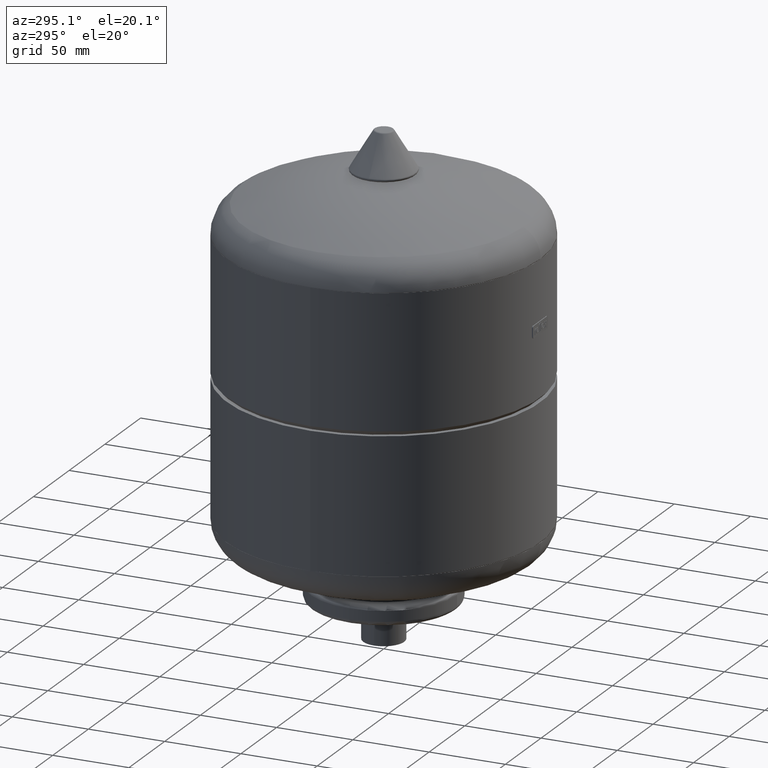
[diagram: clean part render]
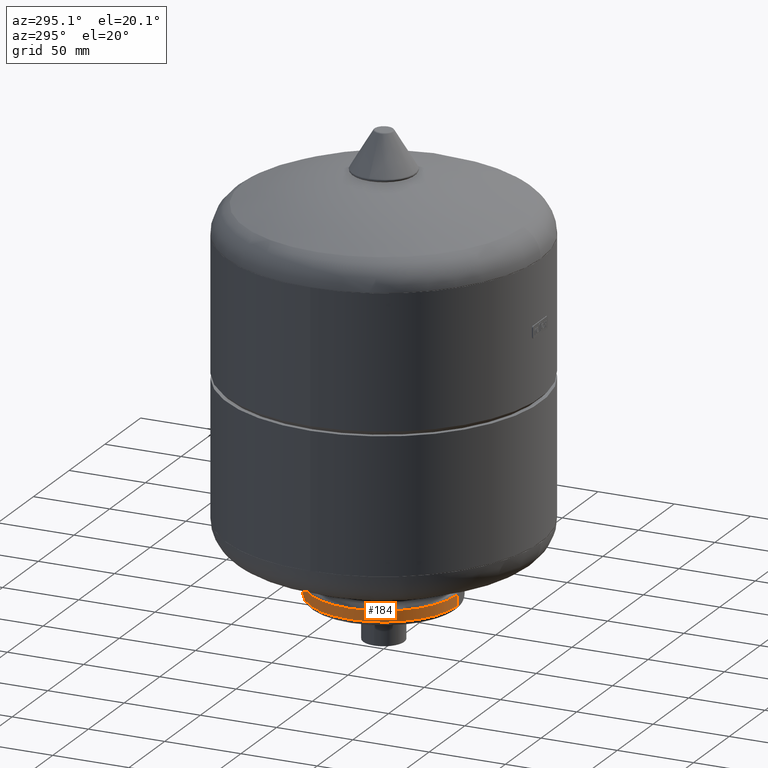
[diagram: same view with one face highlighted and labeled with its STEP entity id]
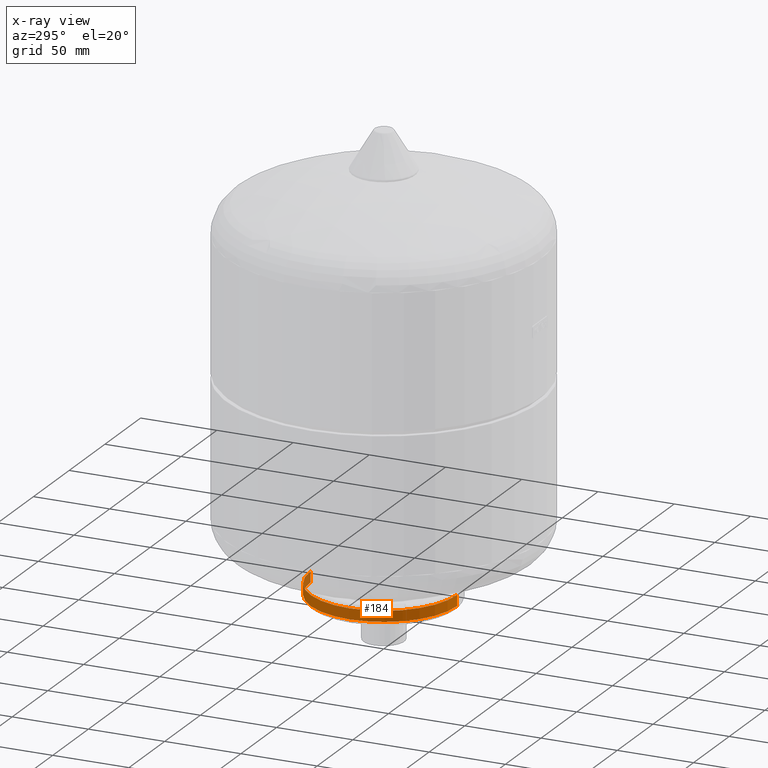
[diagram: x-ray of the same camera — body ghosted, the highlighted face saturated]
A machine part, auxiliary view. The second image highlights one B-rep face of the part: STEP entity #184.
The next image is the same camera in x-ray: the body ghosted, the highlighted face saturated — about 5% of this face is hidden behind the body in this view.
In plain terms, the highlighted cylindrical surface (partial cylindrical patch) has radius 48 mm, axis along (0, -0, -1).
Its self-contained STEP definition (entity closure, byte-faithful):
#125=CARTESIAN_POINT('',(0.0,0.0,32.0));
#126=DIRECTION('',(0.0,-1.045403E-016,-1.0));
#127=DIRECTION('',(0.0,1.0,0.0));
#128=AXIS2_PLACEMENT_3D('',#125,#126,#127);
#129=CYLINDRICAL_SURFACE('',#128,48.000000000000007);
#130=CARTESIAN_POINT('',(0.0,48.0,27.999999999999993));
#131=VERTEX_POINT('',#130);
#132=CARTESIAN_POINT('',(0.0,48.0,35.000000000000007));
#133=VERTEX_POINT('',#132);
#134=CARTESIAN_POINT('',(0.0,48.0,27.999999999999993));
#135=DIRECTION('',(0.0,0.0,1.0));
#136=VECTOR('',#135,7.000000000000014);
#137=LINE('',#134,#136);
#138=EDGE_CURVE('',#131,#133,#137,.T.);
#139=ORIENTED_EDGE('',*,*,#138,.F.);
#140=CARTESIAN_POINT('',(-48.000000000000007,0.0,28.0));
#141=VERTEX_POINT('',#140);
#142=CARTESIAN_POINT('',(0.0,0.0,28.0));
#143=DIRECTION('',(0.0,0.0,-1.0));
#144=DIRECTION('',(0.0,1.0,0.0));
#145=AXIS2_PLACEMENT_3D('',#142,#143,#144);
#146=CIRCLE('',#145,48.000000000000007);
#147=EDGE_CURVE('',#141,#131,#146,.T.);
#148=ORIENTED_EDGE('',*,*,#147,.F.);
#149=CARTESIAN_POINT('',(-5.878110E-015,-48.000000000000007,28.0));
#150=VERTEX_POINT('',#149);
#151=CARTESIAN_POINT('',(0.0,0.0,28.0));
#152=DIRECTION('',(0.0,0.0,-1.0));
#153=DIRECTION('',(0.0,1.0,0.0));
#154=AXIS2_PLACEMENT_3D('',#151,#152,#153);
#155=CIRCLE('',#154,48.000000000000007);
#156=EDGE_CURVE('',#150,#141,#155,.T.);
#157=ORIENTED_EDGE('',*,*,#156,.F.);
#158=CARTESIAN_POINT('',(-5.878110E-015,-48.000000000000007,35.000000000000014));
#159=VERTEX_POINT('',#158);
#160=CARTESIAN_POINT('',(-5.878110E-015,-48.000000000000007,28.0));
#161=DIRECTION('',(0.0,0.0,1.0));
#162=VECTOR('',#161,7.000000000000014);
#163=LINE('',#160,#162);
#164=EDGE_CURVE('',#150,#159,#163,.T.);
#165=ORIENTED_EDGE('',*,*,#164,.T.);
#166=CARTESIAN_POINT('',(-48.000000000000007,0.0,35.000000000000007));
#167=VERTEX_POINT('',#166);
#168=CARTESIAN_POINT('',(0.0,0.0,35.000000000000007));
#169=DIRECTION('',(0.0,0.0,-1.0));
#170=DIRECTION('',(0.0,1.0,0.0));
#171=AXIS2_PLACEMENT_3D('',#168,#169,#170);
#172=CIRCLE('',#171,48.000000000000007);
#173=EDGE_CURVE('',#159,#167,#172,.T.);
#174=ORIENTED_EDGE('',*,*,#173,.T.);
#175=CARTESIAN_POINT('',(0.0,0.0,35.000000000000007));
#176=DIRECTION('',(0.0,0.0,-1.0));
#177=DIRECTION('',(0.0,1.0,0.0));
#178=AXIS2_PLACEMENT_3D('',#175,#176,#177);
#179=CIRCLE('',#178,48.000000000000007);
#180=EDGE_CURVE('',#167,#133,#179,.T.);
#181=ORIENTED_EDGE('',*,*,#180,.T.);
#182=EDGE_LOOP('',(#139,#148,#157,#165,#174,#181));
#183=FACE_OUTER_BOUND('',#182,.T.);
#184=ADVANCED_FACE('',(#183),#129,.T.);